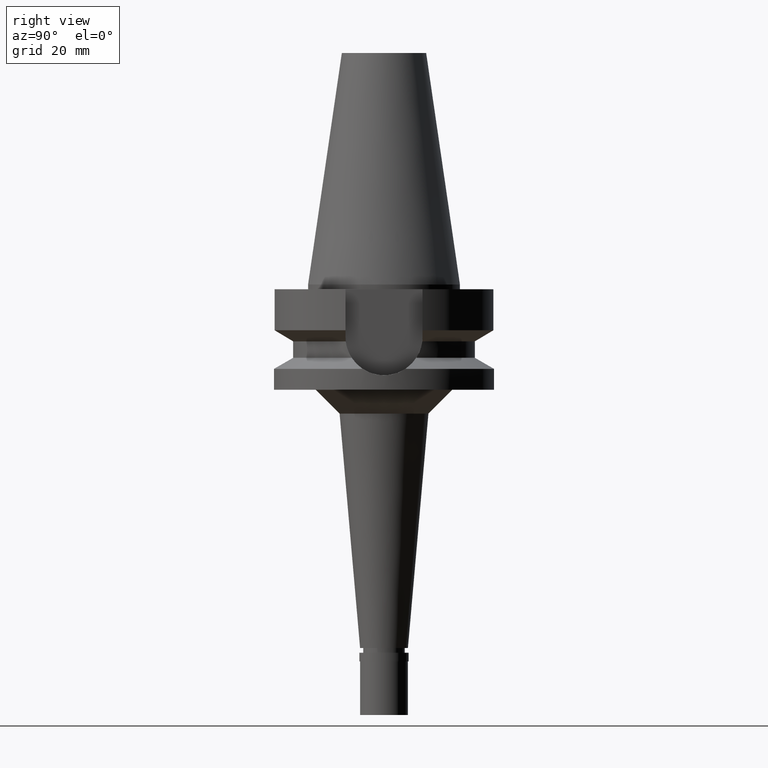
[diagram: clean part render]
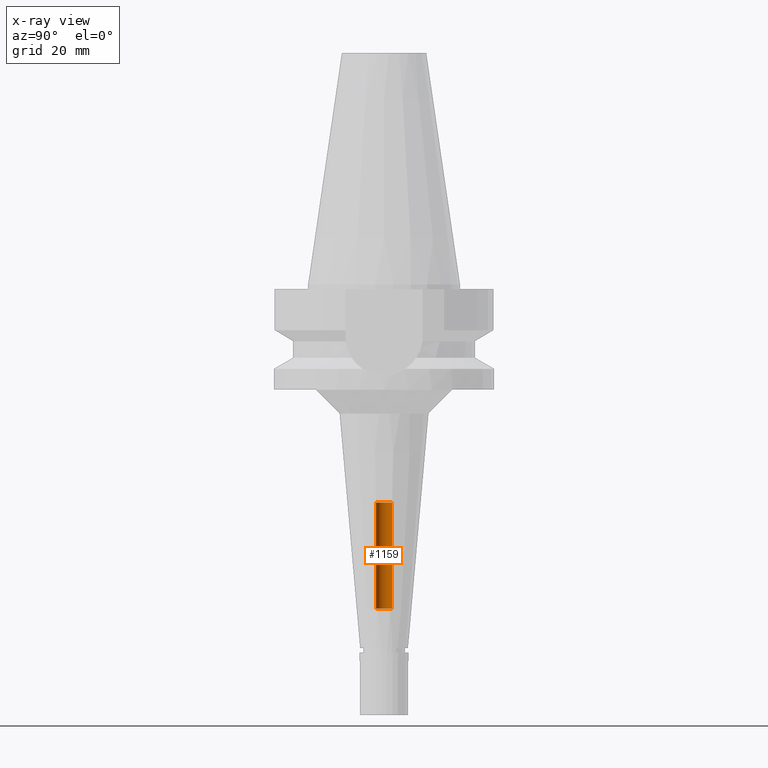
[diagram: x-ray — body ghosted, one internal face saturated and labeled with its STEP entity id]
A machine part, right view, then the same camera in x-ray: the body is ghosted and one INTERNAL B-rep face — a face not visible from any outside direction — is saturated and labeled: STEP entity #1159.
In plain terms, the highlighted cylindrical surface (edge-blend (fillet) strip) has radius 1.7 mm, axis along (0, 0, -1).
Its self-contained STEP definition (entity closure, byte-faithful):
#68 = DIRECTION ( 'NONE',  ( 0.0000000000000000000, 0.0000000000000000000, -1.000000000000000000 ) ) ;
#87 = EDGE_CURVE ( 'NONE', #1191, #1862, #2139, .T. ) ;
#100 = ORIENTED_EDGE ( 'NONE', *, *, #87, .F. ) ;
#269 = EDGE_CURVE ( 'NONE', #1191, #1998, #489, .T. ) ;
#329 = CARTESIAN_POINT ( 'NONE',  ( 0.0000000000000000000, 1.699999999999999956, -67.79999999999999716 ) ) ;
#439 = DIRECTION ( 'NONE',  ( 0.0000000000000000000, 1.000000000000000000, 0.0000000000000000000 ) ) ;
#489 = CIRCLE ( 'NONE', #2576, 1.699999999999999956 ) ;
#591 = AXIS2_PLACEMENT_3D ( 'NONE', #1065, #1959, #439 ) ;
#601 = DIRECTION ( 'NONE',  ( 0.0000000000000000000, 0.0000000000000000000, 1.000000000000000000 ) ) ;
#622 = LINE ( 'NONE', #1501, #1146 ) ;
#656 = CARTESIAN_POINT ( 'NONE',  ( 0.0000000000000000000, 1.899855811856999906E-14, 55.13500000000000512 ) ) ;
#772 = CARTESIAN_POINT ( 'NONE',  ( 0.0000000000000000000, -1.699999999999999956, -45.60000000000000142 ) ) ;
#912 = ORIENTED_EDGE ( 'NONE', *, *, #2604, .T. ) ;
#946 = CARTESIAN_POINT ( 'NONE',  ( 0.0000000000000000000, -1.699999999999999956, -67.79999999999999716 ) ) ;
#981 = DIRECTION ( 'NONE',  ( 0.0000000000000000000, -1.000000000000000000, 0.0000000000000000000 ) ) ;
#1008 = VERTEX_POINT ( 'NONE', #1517 ) ;
#1065 = CARTESIAN_POINT ( 'NONE',  ( 0.0000000000000000000, 1.899855811856999906E-14, -45.60000000000000142 ) ) ;
#1132 = DIRECTION ( 'NONE',  ( 0.0000000000000000000, 0.0000000000000000000, -1.000000000000000000 ) ) ;
#1146 = VECTOR ( 'NONE', #601, 1000.000000000000000 ) ;
#1159 = ADVANCED_FACE ( 'NONE', ( #2035 ), #2690, .F. ) ;
#1191 = VERTEX_POINT ( 'NONE', #1365 ) ;
#1337 = DIRECTION ( 'NONE',  ( 0.0000000000000000000, -1.000000000000000000, 0.0000000000000000000 ) ) ;
#1365 = CARTESIAN_POINT ( 'NONE',  ( 0.0000000000000000000, -1.699999999999999956, -67.79999999999999716 ) ) ;
#1501 = CARTESIAN_POINT ( 'NONE',  ( 0.0000000000000000000, 1.699999999999999956, -67.79999999999999716 ) ) ;
#1517 = CARTESIAN_POINT ( 'NONE',  ( 0.0000000000000000000, 1.699999999999999956, -45.60000000000000142 ) ) ;
#1535 = CIRCLE ( 'NONE', #591, 1.699999999999999956 ) ;
#1572 = VECTOR ( 'NONE', #2085, 1000.000000000000000 ) ;
#1629 = EDGE_CURVE ( 'NONE', #1998, #1008, #622, .T. ) ;
#1646 = CARTESIAN_POINT ( 'NONE',  ( 0.0000000000000000000, 1.899855811856999906E-14, -67.79999999999999716 ) ) ;
#1862 = VERTEX_POINT ( 'NONE', #772 ) ;
#1959 = DIRECTION ( 'NONE',  ( 0.0000000000000000000, 0.0000000000000000000, 1.000000000000000000 ) ) ;
#1998 = VERTEX_POINT ( 'NONE', #329 ) ;
#2016 = ORIENTED_EDGE ( 'NONE', *, *, #1629, .T. ) ;
#2035 = FACE_OUTER_BOUND ( 'NONE', #2773, .T. ) ;
#2085 = DIRECTION ( 'NONE',  ( 0.0000000000000000000, 0.0000000000000000000, 1.000000000000000000 ) ) ;
#2139 = LINE ( 'NONE', #946, #1572 ) ;
#2370 = ORIENTED_EDGE ( 'NONE', *, *, #269, .T. ) ;
#2516 = AXIS2_PLACEMENT_3D ( 'NONE', #656, #1132, #1337 ) ;
#2576 = AXIS2_PLACEMENT_3D ( 'NONE', #1646, #68, #981 ) ;
#2604 = EDGE_CURVE ( 'NONE', #1008, #1862, #1535, .T. ) ;
#2690 = CYLINDRICAL_SURFACE ( 'NONE', #2516, 1.699999999999999956 ) ;
#2773 = EDGE_LOOP ( 'NONE', ( #912, #100, #2370, #2016 ) ) ;